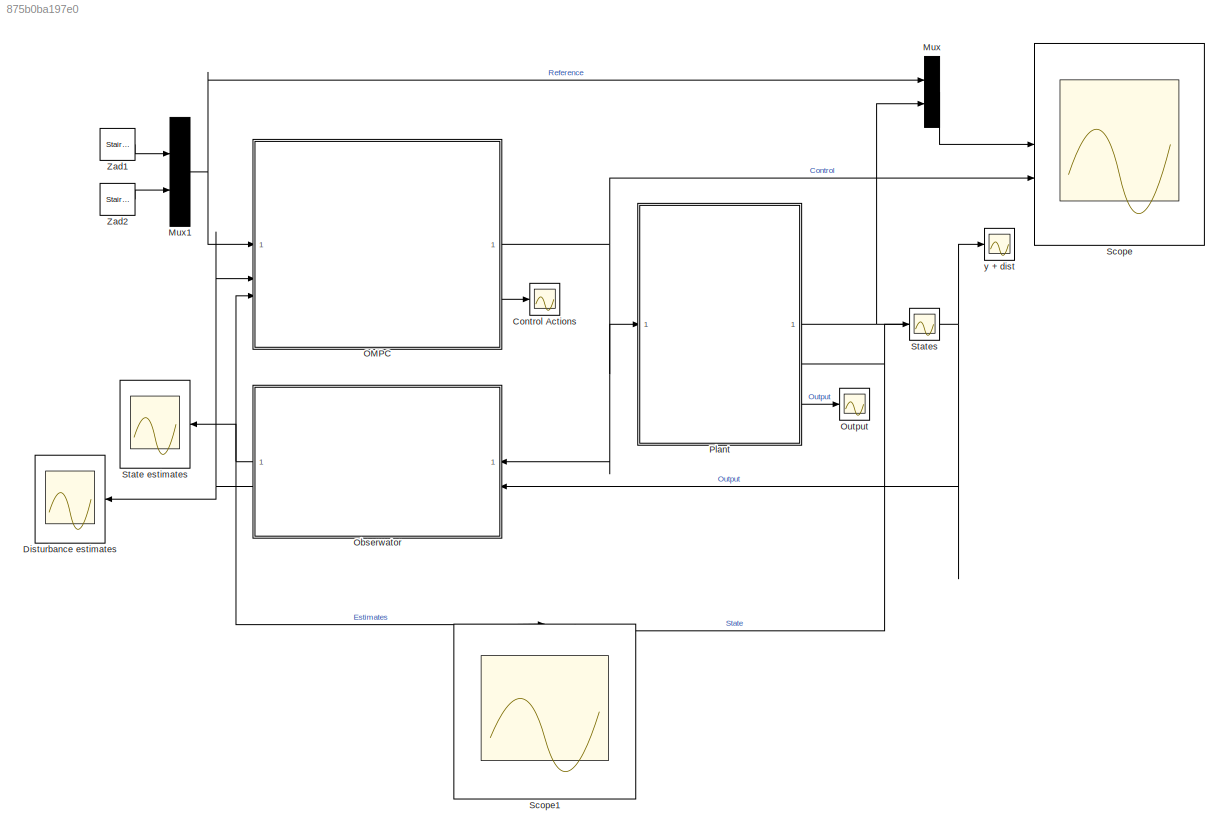
MODEL slx_875b0ba197e0
KIND model
CONFIG AbsTol = auto
CONFIG EnableMultiTasking = off
CONFIG FixedStep = Ts
CONFIG MaxStep = auto
CONFIG MinStep = auto
CONFIG RelTol = 1e-3
CONFIG SampleTimeConstraint = Unconstrained
CONFIG SolverName = ode5
CONFIG StartTime = 0.0
CONFIG StopTime = 50
BLOCK [Scope] Control Actions
  Floating = off
  NumInputPorts = 1
  ScopeSpecificationString = Simulink.scopes.TimeScopeBlockCfg('CurrentConfiguration', extmgr.ConfigurationSet(extmgr.Configuration('Core','General UI',true,'FigureColor',[1 1 1]),extmgr.Configuration('Core','Source UI',true),extmgr.Configuration('Sources','WiredSimulink',true,'DataLoggingVariableName','ScopeData1'),extmgr.Configuration('Visuals','Time Domain',true,'SerializedDisplays',{struct('MinYLimReal','-77.97773','MaxYL...<+1686ch>
BLOCK [Scope] Disturbance estimates
  Floating = off
  NumInputPorts = 1
  ScopeSpecificationString = Simulink.scopes.TimeScopeBlockCfg('CurrentConfiguration', extmgr.ConfigurationSet(extmgr.Configuration('Core','General UI',true),extmgr.Configuration('Core','Source UI',true),extmgr.Configuration('Sources','WiredSimulink',true,'DataLoggingVariableName','ScopeData3'),extmgr.Configuration('Visuals','Time Domain',true,'SerializedDisplays',{struct('MinYLimReal','-0.00000000001','MaxYLimReal','0.000000...<+1444ch>
BLOCK [Mux] Mux
  DisplayOption = bar
  Inputs = 2
BLOCK [Mux] Mux1
  DisplayOption = bar
  Inputs = 2
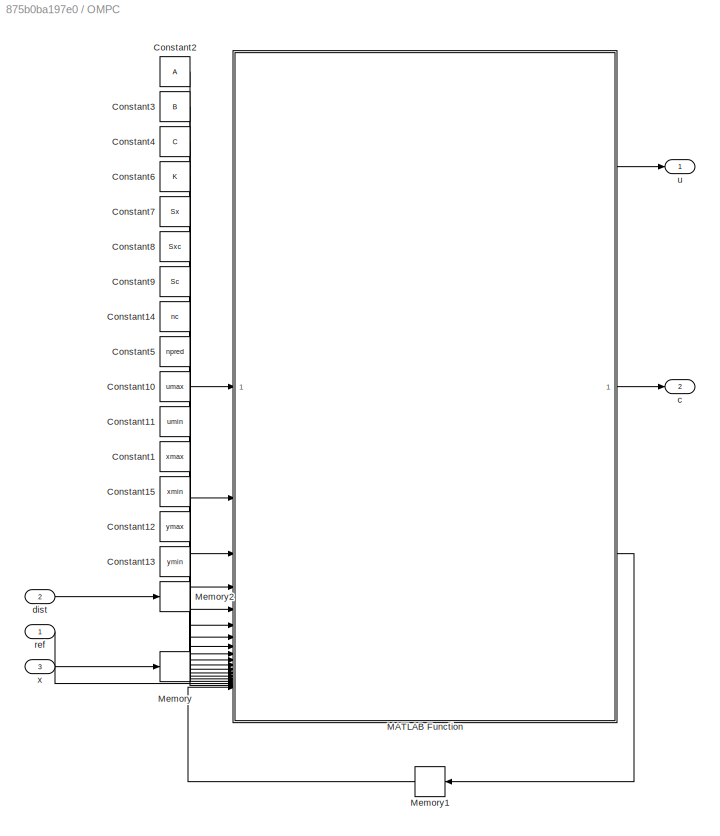
BLOCK [SubSystem] OMPC
BLOCK [Constant] OMPC/Constant1
  Value = xmax
BLOCK [Constant] OMPC/Constant10
  Value = umax
BLOCK [Constant] OMPC/Constant11
  Value = umin
BLOCK [Constant] OMPC/Constant12
  Value = ymax
BLOCK [Constant] OMPC/Constant13
  Value = ymin
BLOCK [Constant] OMPC/Constant14
  Value = nc
BLOCK [Constant] OMPC/Constant15
  Value = xmin
BLOCK [Constant] OMPC/Constant2
  Value = A
BLOCK [Constant] OMPC/Constant3
  Value = B
BLOCK [Constant] OMPC/Constant4
  Value = C
BLOCK [Constant] OMPC/Constant5
  Value = npred
BLOCK [Constant] OMPC/Constant6
  Value = K
BLOCK [Constant] OMPC/Constant7
  Value = Sx
BLOCK [Constant] OMPC/Constant8
  Value = Sxc
BLOCK [Constant] OMPC/Constant9
  Value = Sc
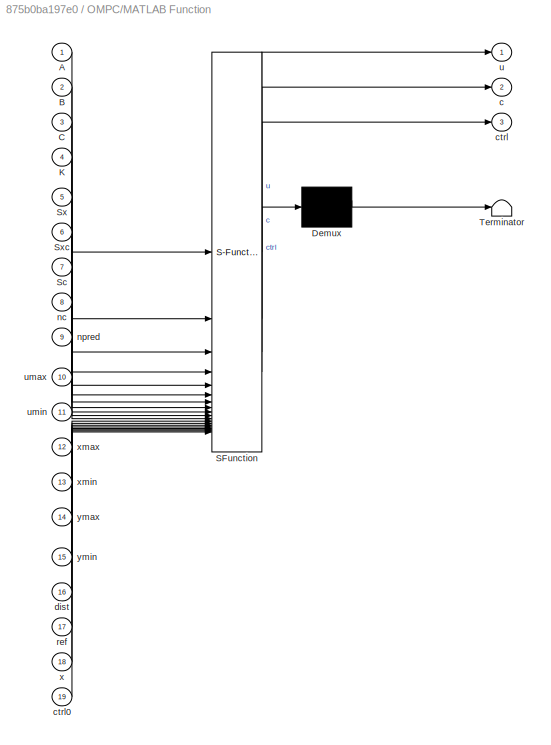
BLOCK [SubSystem] OMPC/MATLAB Function
  ErrorFcn = Stateflow.Translate.translate
  LibrarySourceBlock = simulink/User-Defined\nFunctions/MATLAB Function
  PermitHierarchicalResolution = ExplicitOnly
  SFBlockType = MATLAB Function
  TreatAsAtomicUnit = on
BLOCK [Demux] OMPC/MATLAB Function/ Demux 
  Outputs = 1
BLOCK [S-Function] OMPC/MATLAB Function/ SFunction 
  EnableBusSupport = on
  FunctionName = sf_sfun
  PortCounts = [19 4]
  SFcnIsStateOwnerBlock = off
  SFunctionDeploymentMode = off
  Tag = Stateflow S-Function 2
BLOCK [Terminator] OMPC/MATLAB Function/ Terminator 
BLOCK [Inport] OMPC/MATLAB Function/A
BLOCK [Inport] OMPC/MATLAB Function/B
  Port = 2
BLOCK [Inport] OMPC/MATLAB Function/C
  Port = 3
BLOCK [Inport] OMPC/MATLAB Function/K
  Port = 4
BLOCK [Inport] OMPC/MATLAB Function/Sc
  Port = 7
BLOCK [Inport] OMPC/MATLAB Function/Sx
  Port = 5
BLOCK [Inport] OMPC/MATLAB Function/Sxc
  Port = 6
BLOCK [Outport] OMPC/MATLAB Function/c
  Port = 2
BLOCK [Outport] OMPC/MATLAB Function/ctrl
  Port = 3
BLOCK [Inport] OMPC/MATLAB Function/ctrl0
  Port = 19
BLOCK [Inport] OMPC/MATLAB Function/dist
  Port = 16
BLOCK [Inport] OMPC/MATLAB Function/nc
  Port = 8
BLOCK [Inport] OMPC/MATLAB Function/npred
  Port = 9
BLOCK [Inport] OMPC/MATLAB Function/ref
  Port = 17
BLOCK [Outport] OMPC/MATLAB Function/u
BLOCK [Inport] OMPC/MATLAB Function/umax
  Port = 10
BLOCK [Inport] OMPC/MATLAB Function/umin
  Port = 11
BLOCK [Inport] OMPC/MATLAB Function/x
  Port = 18
BLOCK [Inport] OMPC/MATLAB Function/xmax
  Port = 12
BLOCK [Inport] OMPC/MATLAB Function/xmin
  Port = 13
BLOCK [Inport] OMPC/MATLAB Function/ymax
  Port = 14
BLOCK [Inport] OMPC/MATLAB Function/ymin
  Port = 15
BLOCK [Memory] OMPC/Memory
  InitialCondition = size(nx,1)
BLOCK [Memory] OMPC/Memory1
  InitialCondition = zeros(nc*size(B,2),1)
  NameLocation = top
BLOCK [Memory] OMPC/Memory2
  InitialCondition = size(nu,1)
BLOCK [Outport] OMPC/c
  Port = 2
BLOCK [Inport] OMPC/dist
  Port = 2
BLOCK [Inport] OMPC/ref
BLOCK [Outport] OMPC/u
BLOCK [Inport] OMPC/x
  Port = 3
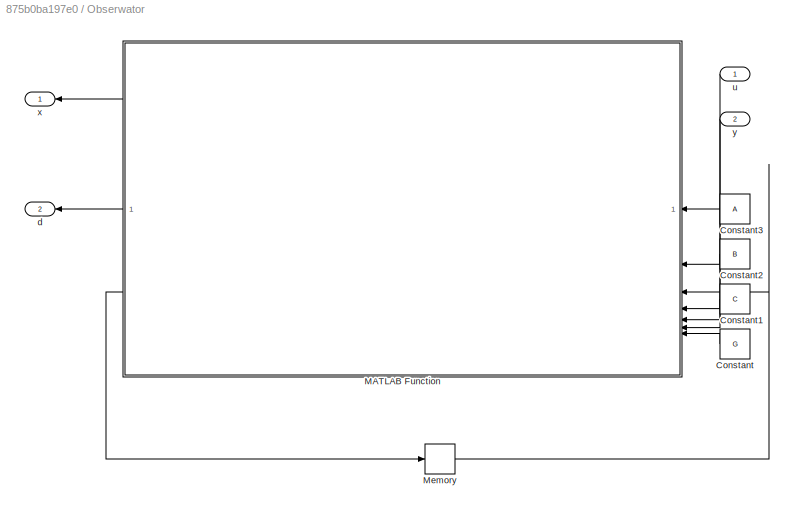
BLOCK [SubSystem] Obserwator
BLOCK [Constant] Obserwator/Constant
  NameLocation = top
  Value = G
BLOCK [Constant] Obserwator/Constant1
  NameLocation = top
  Value = C
BLOCK [Constant] Obserwator/Constant2
  NameLocation = top
  Value = B
BLOCK [Constant] Obserwator/Constant3
  NameLocation = top
  Value = A
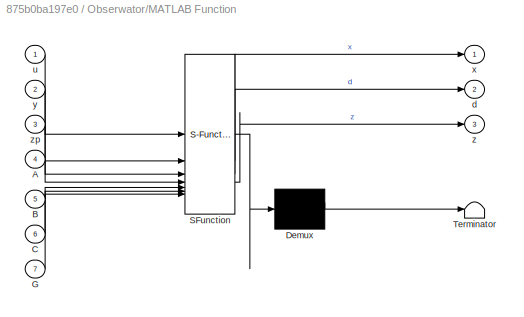
BLOCK [SubSystem] Obserwator/MATLAB Function
  ErrorFcn = Stateflow.Translate.translate
  LibrarySourceBlock = simulink/User-Defined\nFunctions/MATLAB Function
  NameLocation = top
  PermitHierarchicalResolution = ExplicitOnly
  SFBlockType = MATLAB Function
  TreatAsAtomicUnit = on
BLOCK [Demux] Obserwator/MATLAB Function/ Demux 
  Outputs = 1
BLOCK [S-Function] Obserwator/MATLAB Function/ SFunction 
  EnableBusSupport = on
  FunctionName = sf_sfun
  PortCounts = [7 4]
  SFcnIsStateOwnerBlock = off
  SFunctionDeploymentMode = off
  Tag = Stateflow S-Function 1
BLOCK [Terminator] Obserwator/MATLAB Function/ Terminator 
BLOCK [Inport] Obserwator/MATLAB Function/A
  Port = 4
BLOCK [Inport] Obserwator/MATLAB Function/B
  Port = 5
BLOCK [Inport] Obserwator/MATLAB Function/C
  Port = 6
BLOCK [Inport] Obserwator/MATLAB Function/G
  Port = 7
BLOCK [Outport] Obserwator/MATLAB Function/d
  Port = 2
BLOCK [Inport] Obserwator/MATLAB Function/u
BLOCK [Outport] Obserwator/MATLAB Function/x
BLOCK [Inport] Obserwator/MATLAB Function/y
  Port = 2
BLOCK [Outport] Obserwator/MATLAB Function/z
  Port = 3
BLOCK [Inport] Obserwator/MATLAB Function/zp
  Port = 3
BLOCK [Memory] Obserwator/Memory
  InitialCondition = zeros(size(A,1)+size(B,2),1)
BLOCK [Outport] Obserwator/d
  NameLocation = top
  Port = 2
BLOCK [Inport] Obserwator/u
BLOCK [Outport] Obserwator/x
  NameLocation = top
BLOCK [Inport] Obserwator/y
  Port = 2
BLOCK [Scope] Output
  Floating = off
  NumInputPorts = 1
  ScopeSpecificationString = Simulink.scopes.TimeScopeBlockCfg('CurrentConfiguration', extmgr.ConfigurationSet(extmgr.Configuration('Core','General UI',true,'FigureColor',[1 1 1]),extmgr.Configuration('Core','Source UI',true),extmgr.Configuration('Sources','WiredSimulink',true,'DataLoggingVariableName','ScopeData1'),extmgr.Configuration('Visuals','Time Domain',true,'SerializedDisplays',{struct('MinYLimReal','-0.19062','MaxYLi...<+1777ch>
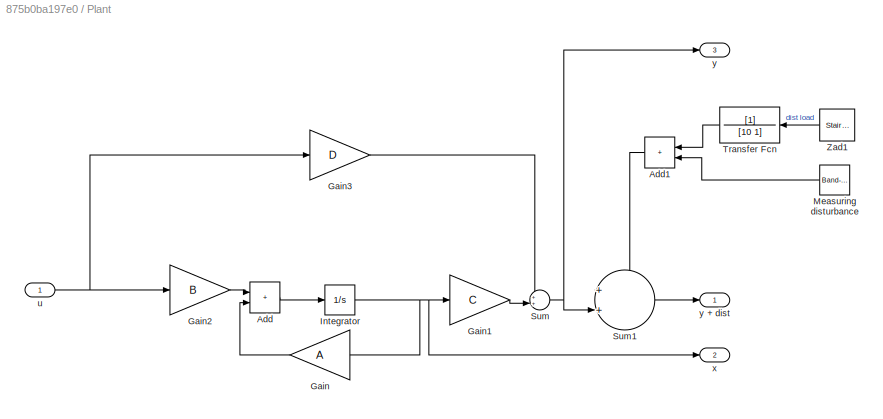
BLOCK [SubSystem] Plant
BLOCK [Sum] Plant/Add
  IconShape = rectangular
BLOCK [Sum] Plant/Add1
  Commented = on
  IconShape = rectangular
  NameLocation = top
BLOCK [Gain] Plant/Gain
  Gain = A
  Multiplication = Matrix(K*u) (u vector)
  NameLocation = top
BLOCK [Gain] Plant/Gain1
  Gain = C
  Multiplication = Matrix(K*u) (u vector)
BLOCK [Gain] Plant/Gain2
  Gain = B
  Multiplication = Matrix(K*u) (u vector)
BLOCK [Gain] Plant/Gain3
  Gain = D
  Multiplication = Matrix(K*u) (u vector)
BLOCK [Integrator] Plant/Integrator
BLOCK [Reference] Plant/Measuring disturbance  REF=simulink/Sources/Band-Limited
White Noise
  Commented = on
  SourceBlock = simulink/Sources/Band-Limited\nWhite Noise
  SourceType = Band-Limited White Noise.
BLOCK [Sum] Plant/Sum
  Inputs = ++|
BLOCK [Sum] Plant/Sum1
  Inputs = ++|
BLOCK [TransferFcn] Plant/Transfer Fcn
  Commented = on
  Denominator = [10 1]
  NameLocation = top
BLOCK [Reference] Plant/Zad1  REF=eeStairGenerator/Stair Generator
  Commented = on
  LibrarySourceBlock = ee_sl_lib/General Control/Stair Generator
  NameLocation = top
  SourceBlock = eeStairGenerator/Stair Generator
  SourceType = Stair Generator
BLOCK [Inport] Plant/u
BLOCK [Outport] Plant/x
  Port = 2
BLOCK [Outport] Plant/y
  Port = 3
BLOCK [Outport] Plant/y + dist
BLOCK [Scope] Scope
  Floating = off
  NumInputPorts = 2
  ScopeSpecificationString = Simulink.scopes.TimeScopeBlockCfg('CurrentConfiguration', extmgr.ConfigurationSet(extmgr.Configuration('Core','General UI',true,'FigureColor',[1 1 1]),extmgr.Configuration('Core','Source UI',true),extmgr.Configuration('Sources','WiredSimulink',true,'DataLoggingVariableName','ScopeData1'),extmgr.Configuration('Visuals','Time Domain',true,'SerializedDisplays',{struct('MinYLimReal','-0.125','MaxYLimR...<+3117ch>
BLOCK [Scope] Scope1
  Floating = off
  NameLocation = left
  NumInputPorts = 2
  ScopeSpecificationString = Simulink.scopes.TimeScopeBlockCfg('CurrentConfiguration', extmgr.ConfigurationSet(extmgr.Configuration('Core','General UI',true),extmgr.Configuration('Core','Source UI',true),extmgr.Configuration('Sources','WiredSimulink',true,'DataLoggingVariableName','ScopeData5'),extmgr.Configuration('Visuals','Time Domain',true,'SerializedDisplays',{struct('MinYLimReal','-16.44897','MaxYLimReal','8.23776','YLa...<+1640ch>
BLOCK [Scope] State estimates
  Floating = off
  NumInputPorts = 1
  ScopeSpecificationString = Simulink.scopes.TimeScopeBlockCfg('CurrentConfiguration', extmgr.ConfigurationSet(extmgr.Configuration('Core','General UI',true),extmgr.Configuration('Core','Source UI',true),extmgr.Configuration('Sources','WiredSimulink',true,'DataLoggingVariableName','ScopeData4'),extmgr.Configuration('Visuals','Time Domain',true,'SerializedDisplays',{struct('MinYLimReal','-16.15382','MaxYLimReal','5.52083','YLa...<+1402ch>
BLOCK [Scope] States
  Floating = off
  NumInputPorts = 1
  ScopeSpecificationString = Simulink.scopes.TimeScopeBlockCfg('CurrentConfiguration', extmgr.ConfigurationSet(extmgr.Configuration('Core','General UI',true,'FigureColor',[1 1 1]),extmgr.Configuration('Core','Source UI',true),extmgr.Configuration('Sources','WiredSimulink',true,'DataLoggingVariableName','ScopeData2'),extmgr.Configuration('Visuals','Time Domain',true,'SerializedDisplays',{struct('MinYLimReal','-14.07283','MaxYL...<+1793ch>
BLOCK [Reference] Zad1  REF=eeStairGenerator/Stair Generator
  LibrarySourceBlock = ee_sl_lib/General Control/Stair Generator
  SourceBlock = eeStairGenerator/Stair Generator
  SourceType = Stair Generator
BLOCK [Reference] Zad2  REF=eeStairGenerator/Stair Generator
  LibrarySourceBlock = ee_sl_lib/General Control/Stair Generator
  SourceBlock = eeStairGenerator/Stair Generator
  SourceType = Stair Generator
BLOCK [Scope] y + dist
  Floating = off
  NumInputPorts = 1
  ScopeSpecificationString = Simulink.scopes.TimeScopeBlockCfg('CurrentConfiguration', extmgr.ConfigurationSet(extmgr.Configuration('Core','General UI',true,'FigureColor',[1 1 1]),extmgr.Configuration('Core','Source UI',true),extmgr.Configuration('Sources','WiredSimulink',true,'DataLoggingVariableName','ScopeData2'),extmgr.Configuration('Visuals','Time Domain',true,'SerializedDisplays',{struct('MinYLimReal','-29.69762','MaxYL...<+1789ch>
NET Mux1:1 -> Mux:1, OMPC:1
LINE Mux:1 -> Scope:1
LINE OMPC/Constant10:1 -> OMPC/MATLAB Function:10
LINE OMPC/Constant11:1 -> OMPC/MATLAB Function:11
LINE OMPC/Constant12:1 -> OMPC/MATLAB Function:14
LINE OMPC/Constant13:1 -> OMPC/MATLAB Function:15
LINE OMPC/Constant14:1 -> OMPC/MATLAB Function:8
LINE OMPC/Constant15:1 -> OMPC/MATLAB Function:13
LINE OMPC/Constant1:1 -> OMPC/MATLAB Function:12
LINE OMPC/Constant2:1 -> OMPC/MATLAB Function:1
LINE OMPC/Constant3:1 -> OMPC/MATLAB Function:2
LINE OMPC/Constant4:1 -> OMPC/MATLAB Function:3
LINE OMPC/Constant5:1 -> OMPC/MATLAB Function:9
LINE OMPC/Constant6:1 -> OMPC/MATLAB Function:4
LINE OMPC/Constant7:1 -> OMPC/MATLAB Function:5
LINE OMPC/Constant8:1 -> OMPC/MATLAB Function:6
LINE OMPC/Constant9:1 -> OMPC/MATLAB Function:7
LINE OMPC/MATLAB Function:1 -> OMPC/u:1
LINE OMPC/MATLAB Function:2 -> OMPC/c:1
LINE OMPC/MATLAB Function:3 -> OMPC/Memory1:1
LINE OMPC/Memory1:1 -> OMPC/MATLAB Function:19
LINE OMPC/Memory2:1 -> OMPC/MATLAB Function:16
LINE OMPC/Memory:1 -> OMPC/MATLAB Function:18
LINE OMPC/dist:1 -> OMPC/Memory2:1
LINE OMPC/ref:1 -> OMPC/MATLAB Function:17
LINE OMPC/x:1 -> OMPC/Memory:1
NET OMPC:1 -> Obserwator:1, Plant:1, Scope:2
LINE OMPC:2 -> Control Actions:1
LINE Obserwator/Constant1:1 -> Obserwator/MATLAB Function:6
LINE Obserwator/Constant2:1 -> Obserwator/MATLAB Function:5
LINE Obserwator/Constant3:1 -> Obserwator/MATLAB Function:4
LINE Obserwator/Constant:1 -> Obserwator/MATLAB Function:7
LINE Obserwator/MATLAB Function:1 -> Obserwator/x:1
LINE Obserwator/MATLAB Function:2 -> Obserwator/d:1
LINE Obserwator/MATLAB Function:3 -> Obserwator/Memory:1
LINE Obserwator/Memory:1 -> Obserwator/MATLAB Function:3
LINE Obserwator/u:1 -> Obserwator/MATLAB Function:1
LINE Obserwator/y:1 -> Obserwator/MATLAB Function:2
NET Obserwator:1 -> OMPC:3, Scope1:1, State estimates:1
NET Obserwator:2 -> Disturbance estimates:1, OMPC:2
LINE Plant/Add1:1 -> Plant/Sum1:1
LINE Plant/Add:1 -> Plant/Integrator:1
LINE Plant/Gain1:1 -> Plant/Sum:2
LINE Plant/Gain2:1 -> Plant/Add:1
LINE Plant/Gain3:1 -> Plant/Sum:1
LINE Plant/Gain:1 -> Plant/Add:2
NET Plant/Integrator:1 -> Plant/Gain1:1, Plant/Gain:1, Plant/x:1
LINE Plant/Measuring disturbance:1 -> Plant/Add1:2
LINE Plant/Sum1:1 -> Plant/y + dist:1
NET Plant/Sum:1 -> Plant/Sum1:2, Plant/y:1
LINE Plant/Transfer Fcn:1 -> Plant/Add1:1
LINE Plant/Zad1:1 -> Plant/Transfer Fcn:1
NET Plant/u:1 -> Plant/Gain2:1, Plant/Gain3:1
NET Plant:1 -> Mux:2, Obserwator:2, y + dist:1
NET Plant:2 -> Scope1:2, States:1
LINE Plant:3 -> Output:1
LINE Zad1:1 -> Mux1:1
LINE Zad2:1 -> Mux1:2
note: NET lines group one-source signal fan-out (src -> all destinations, sorted); 1:1 wires keep LINE
CHART Obserwator/MATLAB Function states=1 transitions=1
  STATE_LABEL 'eML_blk_kernel()'
  STATE_LABEL 'SCRIPT:\nfunction [x,d,z] = fcn(u,y,zp,A,B,C,G)\n\nnx = size(A,1);\nnu = size(B,2);\nny = size(C,1);\n\nAo = [A zeros(nx,nu);zeros(nu,nx) eye(nu)];\nBo = [B;zeros(nu)];\nCo = [C eye(nu)];\nGo = [G;[0.01 0.02;0.035 0.2]];\n\n\nz = (Ao - Go*Co)*zp + [Bo,Go]*[u;y];\n\nx = z(1:nx,:);\nd = z(nx+1:end,:);'
CHART OMPC/MATLAB Function states=1 transitions=1
  STATE_LABEL 'eML_blk_kernel()'
  STATE_LABEL 'SCRIPT:\nfunction [u,c,ctrl] = fcn(A,B,C,K,Sx,Sxc,Sc,nc,npred,umax,umin,xmax,xmin,ymax,ymin,dist,ref,x,ctrl0)\n\n% [u,c] = ompc_law_unconstrained(A,B,C,K,Sx,Sxc,Sc,ref,dist,x);\n\n[u,ctrl] = ompc_law(A,B,C,K,Sx,Sxc,Sc,umax,umin,xmax,xmin,ymax,ymin,nc,npred,ref,dist,ctrl0,x);\nc = ctrl(1:size(B,2),:);'
CHART  states=0 transitions=0
CHART  states=0 transitions=0
